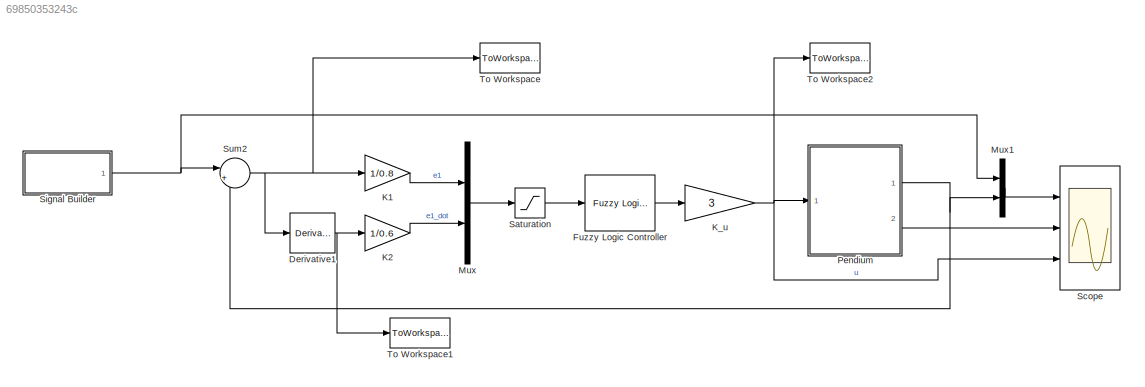
MODEL slx_69850353243c
KIND model
CONFIG AbsTol = auto
CONFIG EnableMultiTasking = off
CONFIG FixedStep = 0.1
CONFIG MaxStep = auto
CONFIG MinStep = auto
CONFIG RelTol = 1e-3
CONFIG SampleTimeConstraint = Unconstrained
CONFIG Solver = ode5
CONFIG SolverName = ode5
CONFIG StartTime = 0.0
CONFIG StopTime = 60
BLOCK [Derivative] Derivative1
BLOCK [Reference] Fuzzy Logic Controller  REF=fuzblock/Fuzzy Logic   (lib defined in mdl_858b3b3e7478)
Controller
  Ports = [1, 1]
  SourceBlock = fuzblock/Fuzzy Logic \nController
  SourceProductBaseCode = FL
  SourceProductName = Fuzzy Logic Toolbox
  SourceType = Fuzzy Inference System
BLOCK [Gain] K1
  Gain = 1/0.8
  OutDataTypeStr = Inherit: Inherit via internal rule
  ParamDataTypeStr = Inherit: Inherit via internal rule
  SaturateOnIntegerOverflow = off
BLOCK [Gain] K2
  Gain = 1/0.6
  OutDataTypeStr = Inherit: Inherit via internal rule
  ParamDataTypeStr = Inherit: Inherit via internal rule
  SaturateOnIntegerOverflow = off
BLOCK [Gain] K_u
  Gain = 3
  OutDataTypeStr = Inherit: Inherit via internal rule
  ParamDataTypeStr = Inherit: Inherit via internal rule
  SaturateOnIntegerOverflow = off
BLOCK [Mux] Mux
  DisplayOption = bar
  Inputs = 2
  Ports = [2, 1]
BLOCK [Mux] Mux1
  DisplayOption = bar
  Inputs = 2
  Ports = [2, 1]
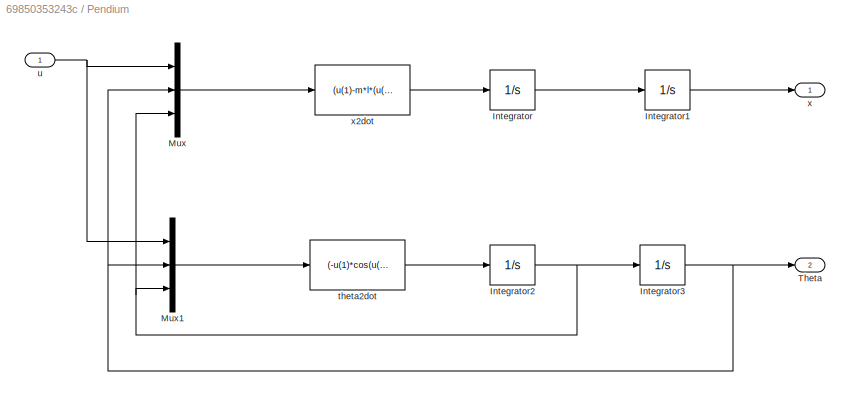
BLOCK [SubSystem] Pendium
  Ports = [1, 2]
  RequestExecContextInheritance = off
  Variant = off
BLOCK [Integrator] Pendium/Integrator
  InitialCondition = xdot0
  Ports = [1, 1]
BLOCK [Integrator] Pendium/Integrator1
  InitialCondition = x0
  Ports = [1, 1]
BLOCK [Integrator] Pendium/Integrator2
  InitialCondition = thetadot0
  Ports = [1, 1]
BLOCK [Integrator] Pendium/Integrator3
  InitialCondition = theta0
  Ports = [1, 1]
BLOCK [Mux] Pendium/Mux
  DisplayOption = bar
  Inputs = 3
  Ports = [3, 1]
BLOCK [Mux] Pendium/Mux1
  DisplayOption = bar
  Inputs = 3
  Ports = [3, 1]
BLOCK [Outport] Pendium/Theta
  IconDisplay = Port number
  Port = 2
BLOCK [Fcn] Pendium/theta2dot
  Expr = (-u(1)*cos(u(2))+m*g*(u(3))^2*sin(u(2))*cos(u(2))+(H+m)*(g*sin(u(2))))/(m*l*(cos(u(2)))^2-(H+m)*l)
BLOCK [Inport] Pendium/u
  IconDisplay = Port number
BLOCK [Outport] Pendium/x
  IconDisplay = Port number
BLOCK [Fcn] Pendium/x2dot
  Expr = (u(1)-m*l*(u(3))^2*sin(u(2))-m*g*sin(u(2))*cos(u(2)))/((H+m)-m*(cos(u(2)))^2)
BLOCK [Saturate] Saturation
  InputPortMap = u0
  LowerLimit = -1
  Ports = [1, 1]
  UpperLimit = 1
BLOCK [Scope] Scope
  NumInputPorts = 3
  Ports = [3]
  ScopeSpecificationString = Simulink.scopes.TimeScopeBlockCfg('CurrentConfiguration', extmgr.ConfigurationSet(extmgr.Configuration('Core','General UI',true,'FigureColor',[1 1 1]),extmgr.Configuration('Core','Source UI',true),extmgr.Configuration('Sources','WiredSimulink',true),extmgr.Configuration('Visuals','Time Domain',true,'SerializedDisplays',{struct('MinYLimReal','-0.10022','MaxYLimReal','0.90201','YLabelReal','','MinYL...<+4557ch>
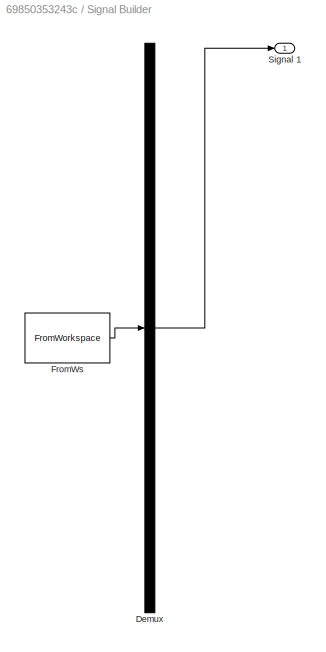
BLOCK [SubSystem] Signal Builder
  ClipboardFcn = sigbuilder_block('clipboard');
  CloseFcn = sigbuilder_block('close');
  ContinueFcn = sigbuilder_block('continue');
  CopyFcn = sigbuilder_block('copy');
  DeleteFcn = sigbuilder_block('delete');
  LoadFcn = sigbuilder_block('load',[0 36 960 449.5 ]);
  MaskHideContents = on
  ModelCloseFcn = sigbuilder_block('modelClose');
  NameChangeFcn = sigbuilder_block('namechange');
  OpenFcn = sigbuilder_block('open',[437.6 199.2 550.4 400 ]);
  PauseFcn = sigbuilder_block('pause');
  Ports = [0, 1]
  PreSaveFcn = sigbuilder_block('preSave');
  RequestExecContextInheritance = off
  StartFcn = sigbuilder_block('start');
  StopFcn = sigbuilder_block('stop');
  Tag = STV Subsys
  Variant = off
BLOCK [Demux] Signal Builder/Demux
  Outputs = 1
  Ports = [1, 1]
  Tag = STV Demux
BLOCK [FromWorkspace] Signal Builder/FromWs
  SampleTime = 0
  Tag = STV FromWs
  VariableName = tuvar
  ZeroCross = on
BLOCK [Outport] Signal Builder/Signal 1
  IconDisplay = Port number
  Tag = STV Outport
BLOCK [Sum] Sum2
  IconShape = round
  InputSameDT = off
  Inputs = |+-
  OutDataTypeStr = Inherit: Inherit via internal rule
  Ports = [2, 1]
  SaturateOnIntegerOverflow = off
BLOCK [ToWorkspace] To Workspace
  FixptAsFi = on
  MaxDataPoints = inf
  Ports = [1]
  SampleTime = -1
  Save2DSignal = 3-D array (concatenate along third dimension)
  VariableName = e
BLOCK [ToWorkspace] To Workspace1
  FixptAsFi = on
  MaxDataPoints = inf
  Ports = [1]
  SampleTime = -1
  Save2DSignal = 3-D array (concatenate along third dimension)
  VariableName = edot
BLOCK [ToWorkspace] To Workspace2
  FixptAsFi = on
  MaxDataPoints = inf
  Ports = [1]
  SampleTime = -1
  Save2DSignal = 3-D array (concatenate along third dimension)
  VariableName = u
NET Derivative1:1 -> K2:1, To Workspace1:1
LINE Fuzzy Logic Controller:1 -> K_u:1
LINE K1:1 -> Mux:1
LINE K2:1 -> Mux:2
NET K_u:1 -> Pendium:1, Scope:3, To Workspace2:1
LINE Mux1:1 -> Scope:1
LINE Mux:1 -> Saturation:1
LINE Pendium/Integrator1:1 -> Pendium/x:1
NET Pendium/Integrator2:1 -> Pendium/Integrator3:1, Pendium/Mux1:3, Pendium/Mux:3
NET Pendium/Integrator3:1 -> Pendium/Mux1:2, Pendium/Mux:2, Pendium/Theta:1
LINE Pendium/Integrator:1 -> Pendium/Integrator1:1
LINE Pendium/Mux1:1 -> Pendium/theta2dot:1
LINE Pendium/Mux:1 -> Pendium/x2dot:1
LINE Pendium/theta2dot:1 -> Pendium/Integrator2:1
NET Pendium/u:1 -> Pendium/Mux1:1, Pendium/Mux:1
LINE Pendium/x2dot:1 -> Pendium/Integrator:1
NET Pendium:1 -> Mux1:2, Sum2:2
LINE Pendium:2 -> Scope:2
LINE Saturation:1 -> Fuzzy Logic Controller:1
NET Signal Builder:1 -> Mux1:1, Sum2:1
NET Sum2:1 -> Derivative1:1, K1:1, To Workspace:1
note: NET lines group one-source signal fan-out (src -> all destinations, sorted); 1:1 wires keep LINE
